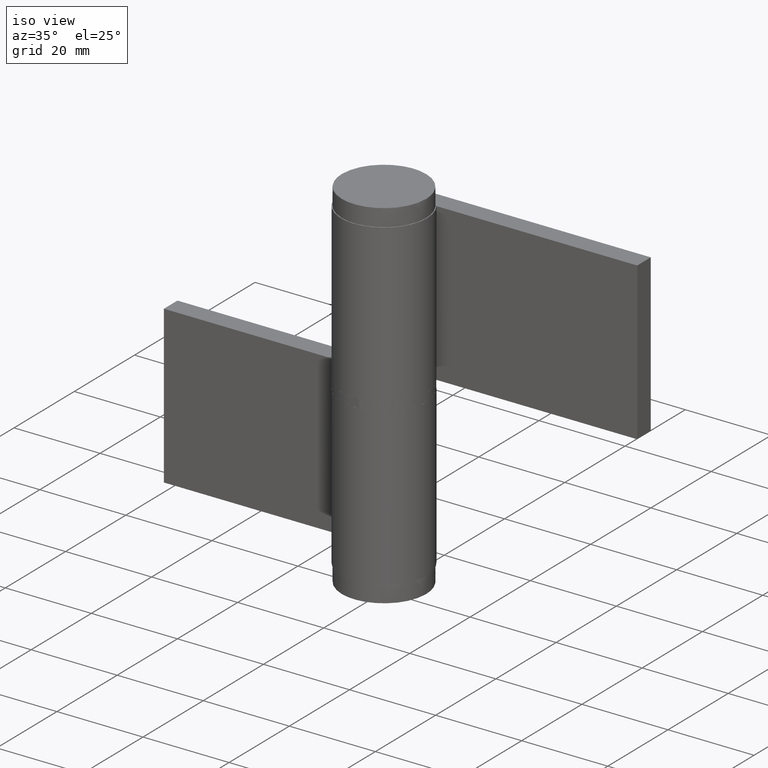
[diagram: clean part render]
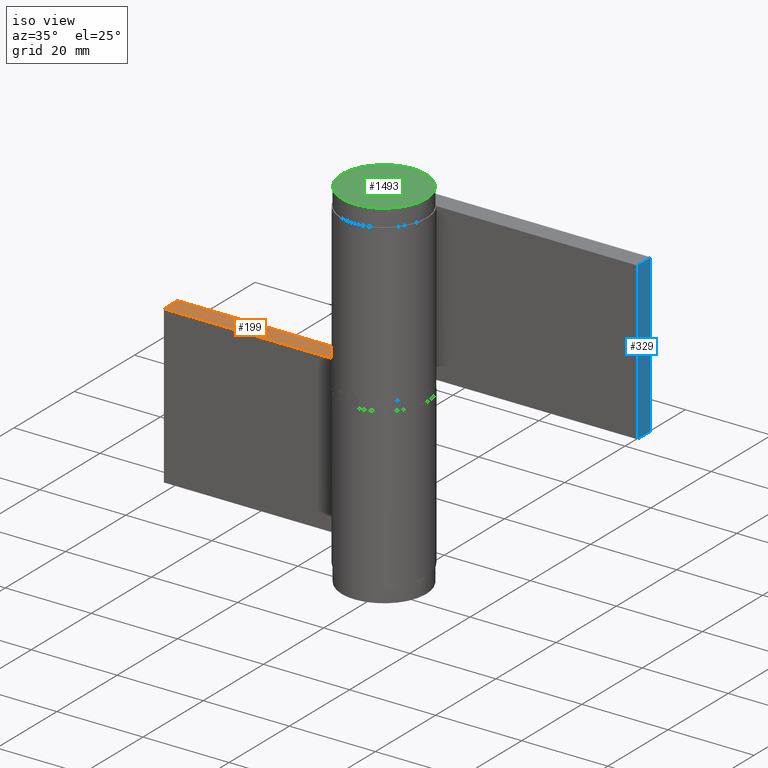
[diagram: same view with three faces highlighted in distinct colors, each labeled with its STEP entity id]
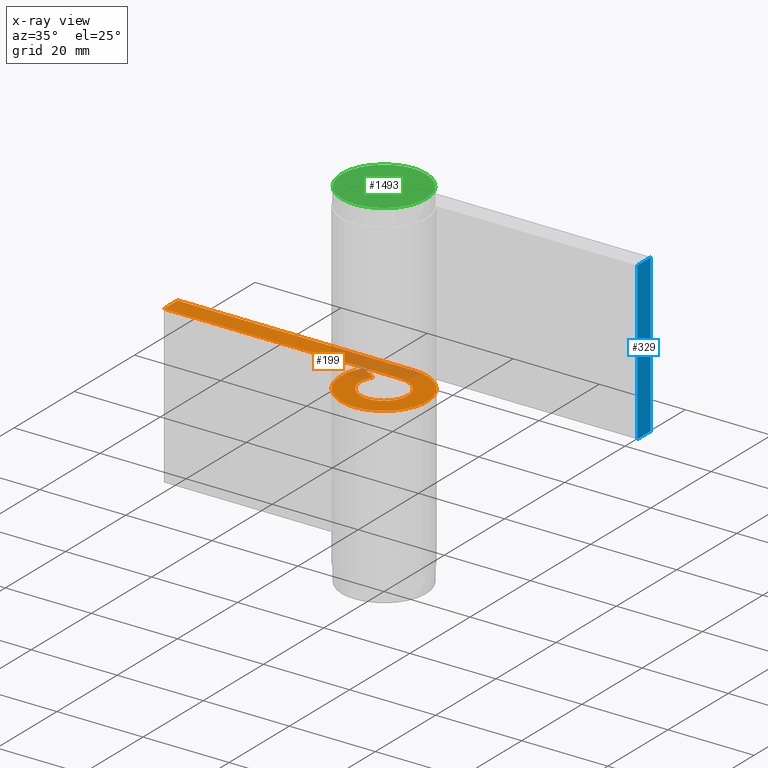
[diagram: x-ray of the same camera — body ghosted, the three highlighted faces saturated]
A machine part, iso view with three faces highlighted in distinct colors.
The next image is the same camera in x-ray (body ghosted, the three faces saturated) — at least one of them is partly hidden behind the body in this view.
Their STEP definitions:

[orange] entity #199 — the highlighted face is a freeform B-spline surface patch.
#122=CARTESIAN_POINT('',(-58.246687252140831,-10.993734140308540,36.500000000000000));
#123=CARTESIAN_POINT('',(13.245435304272061,-10.993734140308540,36.500000000000000));
#124=CARTESIAN_POINT('',(-58.246687252140831,10.998749982999270,36.500000000000000));
#125=CARTESIAN_POINT('',(13.245435304272061,10.998749982999270,36.500000000000000));
#126=B_SPLINE_SURFACE_WITH_KNOTS('',1,1,((#122,#124),(#123,#125)),.UNSPECIFIED.,.F.,.F.,.U.,(2,2),(2,2),(0.0,71.492122556412895),(0.0,21.992484123307811),.UNSPECIFIED.);
#127=CARTESIAN_POINT('',(-55.0,10.0,36.500000000000000));
#128=VERTEX_POINT('',#127);
#129=CARTESIAN_POINT('',(-55.0,5.500000000000000,36.500000000000000));
#130=VERTEX_POINT('',#129);
#131=CARTESIAN_POINT('',(-55.0,10.0,36.500000000000000));
#132=CARTESIAN_POINT('',(-55.0,5.500000000000000,36.500000000000000));
#133=QUASI_UNIFORM_CURVE('',1,(#131,#132),.UNSPECIFIED.,.F.,.U.);
#134=EDGE_CURVE('',#128,#130,#133,.T.);
#135=ORIENTED_EDGE('',*,*,#134,.T.);
#136=CARTESIAN_POINT('',(-7.105427E-015,5.500000000000000,36.500000000000000));
#137=VERTEX_POINT('',#136);
#138=CARTESIAN_POINT('',(-55.0,5.500000000000000,36.500000000000000));
#139=CARTESIAN_POINT('',(-7.105427E-015,5.500000000000000,36.500000000000000));
#140=QUASI_UNIFORM_CURVE('',1,(#138,#139),.UNSPECIFIED.,.F.,.U.);
#141=EDGE_CURVE('',#130,#137,#140,.T.);
#142=ORIENTED_EDGE('',*,*,#141,.T.);
#143=CARTESIAN_POINT('',(-4.611398242398940,2.997500000000000,36.500000000000000));
#144=VERTEX_POINT('',#143);
#145=CARTESIAN_POINT('',(0.0,5.500000000000000,36.500000000000000));
#146=CARTESIAN_POINT('',(4.278255285808725,5.499999999999999,36.500000000000007));
#147=CARTESIAN_POINT('',(5.330915666879423,1.353269430904104,36.500000000000000));
#148=CARTESIAN_POINT('',(6.383576047950124,-2.793461138191798,36.500000000000007));
#149=CARTESIAN_POINT('',(2.623332803896608,-4.834058853592906,36.500000000000000));
#150=CARTESIAN_POINT('',(-1.136910440156906,-6.874656568994015,36.500000000000007));
#151=CARTESIAN_POINT('',(-4.039978906660799,-3.732100003179954,36.500000000000000));
#152=CARTESIAN_POINT('',(-6.943047373164695,-0.589543437365889,36.500000000000007));
#153=CARTESIAN_POINT('',(-4.611398242398940,2.997499999999995,36.500000000000000));
#161=(BOUNDED_CURVE()B_SPLINE_CURVE(2,(#145,#146,#147,#148,#149,#150,#151,#152,#153),.UNSPECIFIED.,.F.,.U.)B_SPLINE_CURVE_WITH_KNOTS((3,2,2,2,3),(0.0,0.250000000000000,0.500000000000000,0.750000000000000,1.0),.UNSPECIFIED.)CURVE()GEOMETRIC_REPRESENTATION_ITEM()RATIONAL_B_SPLINE_CURVE((1.0,0.789319006307687,1.0,0.789319006307687,1.0,0.789319006307687,1.0,0.789319006307687,1.0))REPRESENTATION_ITEM(''));
#162=EDGE_CURVE('',#137,#144,#161,.T.);
#163=ORIENTED_EDGE('',*,*,#162,.T.);
#164=CARTESIAN_POINT('',(-8.384360440725351,5.450000000000000,36.500000000000000));
#165=VERTEX_POINT('',#164);
#166=CARTESIAN_POINT('',(-4.611398242398940,2.997500000000000,36.500000000000000));
#167=CARTESIAN_POINT('',(-8.384360440725351,5.450000000000000,36.500000000000000));
#168=QUASI_UNIFORM_CURVE('',1,(#166,#167),.UNSPECIFIED.,.F.,.U.);
#169=EDGE_CURVE('',#144,#165,#168,.T.);
#170=ORIENTED_EDGE('',*,*,#169,.T.);
#171=CARTESIAN_POINT('',(6.123032E-016,10.0,36.500000000000000));
#172=VERTEX_POINT('',#171);
#173=CARTESIAN_POINT('',(0.0,10.0,36.500000000000000));
#174=CARTESIAN_POINT('',(7.778645974197688,10.0,36.500000000000000));
#175=CARTESIAN_POINT('',(9.692573939780772,2.460489874371089,36.500000000000000));
#176=CARTESIAN_POINT('',(11.606501905363858,-5.079020251257823,36.500000000000000));
#177=CARTESIAN_POINT('',(4.769696007084734,-8.789197915623470,36.500000000000000));
#178=CARTESIAN_POINT('',(-2.067109891194394,-12.499375579989119,36.500000000000000));
#179=CARTESIAN_POINT('',(-7.345416193928739,-6.785636369418084,36.500000000000000));
#180=CARTESIAN_POINT('',(-12.623722496663074,-1.071897158847060,36.500000000000000));
#181=CARTESIAN_POINT('',(-8.384360440725345,5.449999999999990,36.500000000000000));
#189=(BOUNDED_CURVE()B_SPLINE_CURVE(2,(#173,#174,#175,#176,#177,#178,#179,#180,#181),.UNSPECIFIED.,.F.,.U.)B_SPLINE_CURVE_WITH_KNOTS((3,2,2,2,3),(0.0,0.250000000000000,0.500000000000000,0.750000000000000,1.0),.UNSPECIFIED.)CURVE()GEOMETRIC_REPRESENTATION_ITEM()RATIONAL_B_SPLINE_CURVE((1.0,0.789319006307687,1.0,0.789319006307687,1.0,0.789319006307687,1.0,0.789319006307687,1.0))REPRESENTATION_ITEM(''));
#190=EDGE_CURVE('',#172,#165,#189,.T.);
#191=ORIENTED_EDGE('',*,*,#190,.F.);
#192=CARTESIAN_POINT('',(6.123032E-016,10.0,36.500000000000000));
#193=CARTESIAN_POINT('',(-55.0,10.0,36.500000000000000));
#194=QUASI_UNIFORM_CURVE('',1,(#192,#193),.UNSPECIFIED.,.F.,.U.);
#195=EDGE_CURVE('',#172,#128,#194,.T.);
#196=ORIENTED_EDGE('',*,*,#195,.T.);
#197=EDGE_LOOP('',(#135,#142,#163,#170,#191,#196));
#198=FACE_OUTER_BOUND('',#197,.T.);
#199=ADVANCED_FACE('',(#198),#126,.T.);

[blue] entity #329 — the highlighted face is a freeform B-spline surface patch.
#49=CARTESIAN_POINT('',(-55.0,10.0,0.0));
#50=VERTEX_POINT('',#49);
#51=CARTESIAN_POINT('',(-55.0,5.500000000000000,0.0));
#52=VERTEX_POINT('',#51);
#53=CARTESIAN_POINT('',(-55.0,10.0,0.0));
#54=CARTESIAN_POINT('',(-55.0,5.500000000000000,0.0));
#55=QUASI_UNIFORM_CURVE('',1,(#53,#54),.UNSPECIFIED.,.F.,.U.);
#56=EDGE_CURVE('',#50,#52,#55,.T.);
#127=CARTESIAN_POINT('',(-55.0,10.0,36.500000000000000));
#128=VERTEX_POINT('',#127);
#129=CARTESIAN_POINT('',(-55.0,5.500000000000000,36.500000000000000));
#130=VERTEX_POINT('',#129);
#131=CARTESIAN_POINT('',(-55.0,10.0,36.500000000000000));
#132=CARTESIAN_POINT('',(-55.0,5.500000000000000,36.500000000000000));
#133=QUASI_UNIFORM_CURVE('',1,(#131,#132),.UNSPECIFIED.,.F.,.U.);
#134=EDGE_CURVE('',#128,#130,#133,.T.);
#206=CARTESIAN_POINT('',(-55.0,10.0,36.500000000000000));
#207=CARTESIAN_POINT('',(-55.0,10.0,0.0));
#208=QUASI_UNIFORM_CURVE('',1,(#206,#207),.UNSPECIFIED.,.F.,.U.);
#209=EDGE_CURVE('',#128,#50,#208,.T.);
#310=CARTESIAN_POINT('',(-55.0,5.500000000000000,36.500000000000000));
#311=CARTESIAN_POINT('',(-55.0,5.500000000000000,0.0));
#312=QUASI_UNIFORM_CURVE('',1,(#310,#311),.UNSPECIFIED.,.F.,.U.);
#313=EDGE_CURVE('',#130,#52,#312,.T.);
#318=CARTESIAN_POINT('',(-55.0,5.275225008721874,38.323174929255913));
#319=CARTESIAN_POINT('',(-55.0,5.275225008721874,-1.823175908262207));
#320=CARTESIAN_POINT('',(-55.0,10.224775111977531,38.323174929255913));
#321=CARTESIAN_POINT('',(-55.0,10.224775111977531,-1.823175908262207));
#322=B_SPLINE_SURFACE_WITH_KNOTS('',1,1,((#318,#320),(#319,#321)),.UNSPECIFIED.,.F.,.F.,.U.,(2,2),(2,2),(0.0,40.146350837518121),(0.0,4.949550103255657),.UNSPECIFIED.);
#323=ORIENTED_EDGE('',*,*,#56,.T.);
#324=ORIENTED_EDGE('',*,*,#313,.F.);
#325=ORIENTED_EDGE('',*,*,#134,.F.);
#326=ORIENTED_EDGE('',*,*,#209,.T.);
#327=EDGE_LOOP('',(#323,#324,#325,#326));
#328=FACE_OUTER_BOUND('',#327,.T.);
#329=ADVANCED_FACE('',(#328),#322,.F.);

[green] entity #1493 — the highlighted face is a freeform B-spline surface patch.
#1452=CARTESIAN_POINT('',(-10.776774334124189,-10.776774334124090,79.0));
#1453=CARTESIAN_POINT('',(10.776774509325330,-10.776774334124090,79.0));
#1454=CARTESIAN_POINT('',(-10.776774334124189,10.776774509325231,79.0));
#1455=CARTESIAN_POINT('',(10.776774509325330,10.776774509325231,79.0));
#1456=B_SPLINE_SURFACE_WITH_KNOTS('',1,1,((#1452,#1454),(#1453,#1455)),.UNSPECIFIED.,.F.,.F.,.U.,(2,2),(2,2),(0.0,21.553548843449519),(0.0,21.553548843449331),.UNSPECIFIED.);
#1457=CARTESIAN_POINT('',(9.797958000000001,0.0,79.0));
#1458=VERTEX_POINT('',#1457);
#1459=CARTESIAN_POINT('',(-9.797958000000001,0.0,79.0));
#1460=VERTEX_POINT('',#1459);
#1461=CARTESIAN_POINT('',(9.797958000000001,0.0,79.0));
#1462=CARTESIAN_POINT('',(9.797958000000001,-9.797958000000001,79.0));
#1463=CARTESIAN_POINT('',(0.0,-9.797958000000001,79.0));
#1464=CARTESIAN_POINT('',(-9.797958000000001,-9.797958000000001,79.0));
#1465=CARTESIAN_POINT('',(-9.797958000000001,0.0,79.0));
#1473=(BOUNDED_CURVE()B_SPLINE_CURVE(2,(#1461,#1462,#1463,#1464,#1465),.UNSPECIFIED.,.F.,.U.)B_SPLINE_CURVE_WITH_KNOTS((3,2,3),(0.500000000000000,0.750000000000000,1.0),.UNSPECIFIED.)CURVE()GEOMETRIC_REPRESENTATION_ITEM()RATIONAL_B_SPLINE_CURVE((1.0,0.707106781186548,1.0,0.707106781186548,1.0))REPRESENTATION_ITEM(''));
#1474=EDGE_CURVE('',#1458,#1460,#1473,.T.);
#1475=ORIENTED_EDGE('',*,*,#1474,.F.);
#1476=CARTESIAN_POINT('',(-9.797958000000001,0.0,79.0));
#1477=CARTESIAN_POINT('',(-9.797958000000001,9.797958000000001,79.0));
#1478=CARTESIAN_POINT('',(0.0,9.797958000000001,79.0));
#1479=CARTESIAN_POINT('',(9.797958000000001,9.797958000000001,79.0));
#1480=CARTESIAN_POINT('',(9.797958000000001,0.0,79.0));
#1488=(BOUNDED_CURVE()B_SPLINE_CURVE(2,(#1476,#1477,#1478,#1479,#1480),.UNSPECIFIED.,.F.,.U.)B_SPLINE_CURVE_WITH_KNOTS((3,2,3),(0.0,0.250000000000000,0.500000000000000),.UNSPECIFIED.)CURVE()GEOMETRIC_REPRESENTATION_ITEM()RATIONAL_B_SPLINE_CURVE((1.0,0.707106781186548,1.0,0.707106781186548,1.0))REPRESENTATION_ITEM(''));
#1489=EDGE_CURVE('',#1460,#1458,#1488,.T.);
#1490=ORIENTED_EDGE('',*,*,#1489,.F.);
#1491=EDGE_LOOP('',(#1475,#1490));
#1492=FACE_OUTER_BOUND('',#1491,.T.);
#1493=ADVANCED_FACE('',(#1492),#1456,.T.);